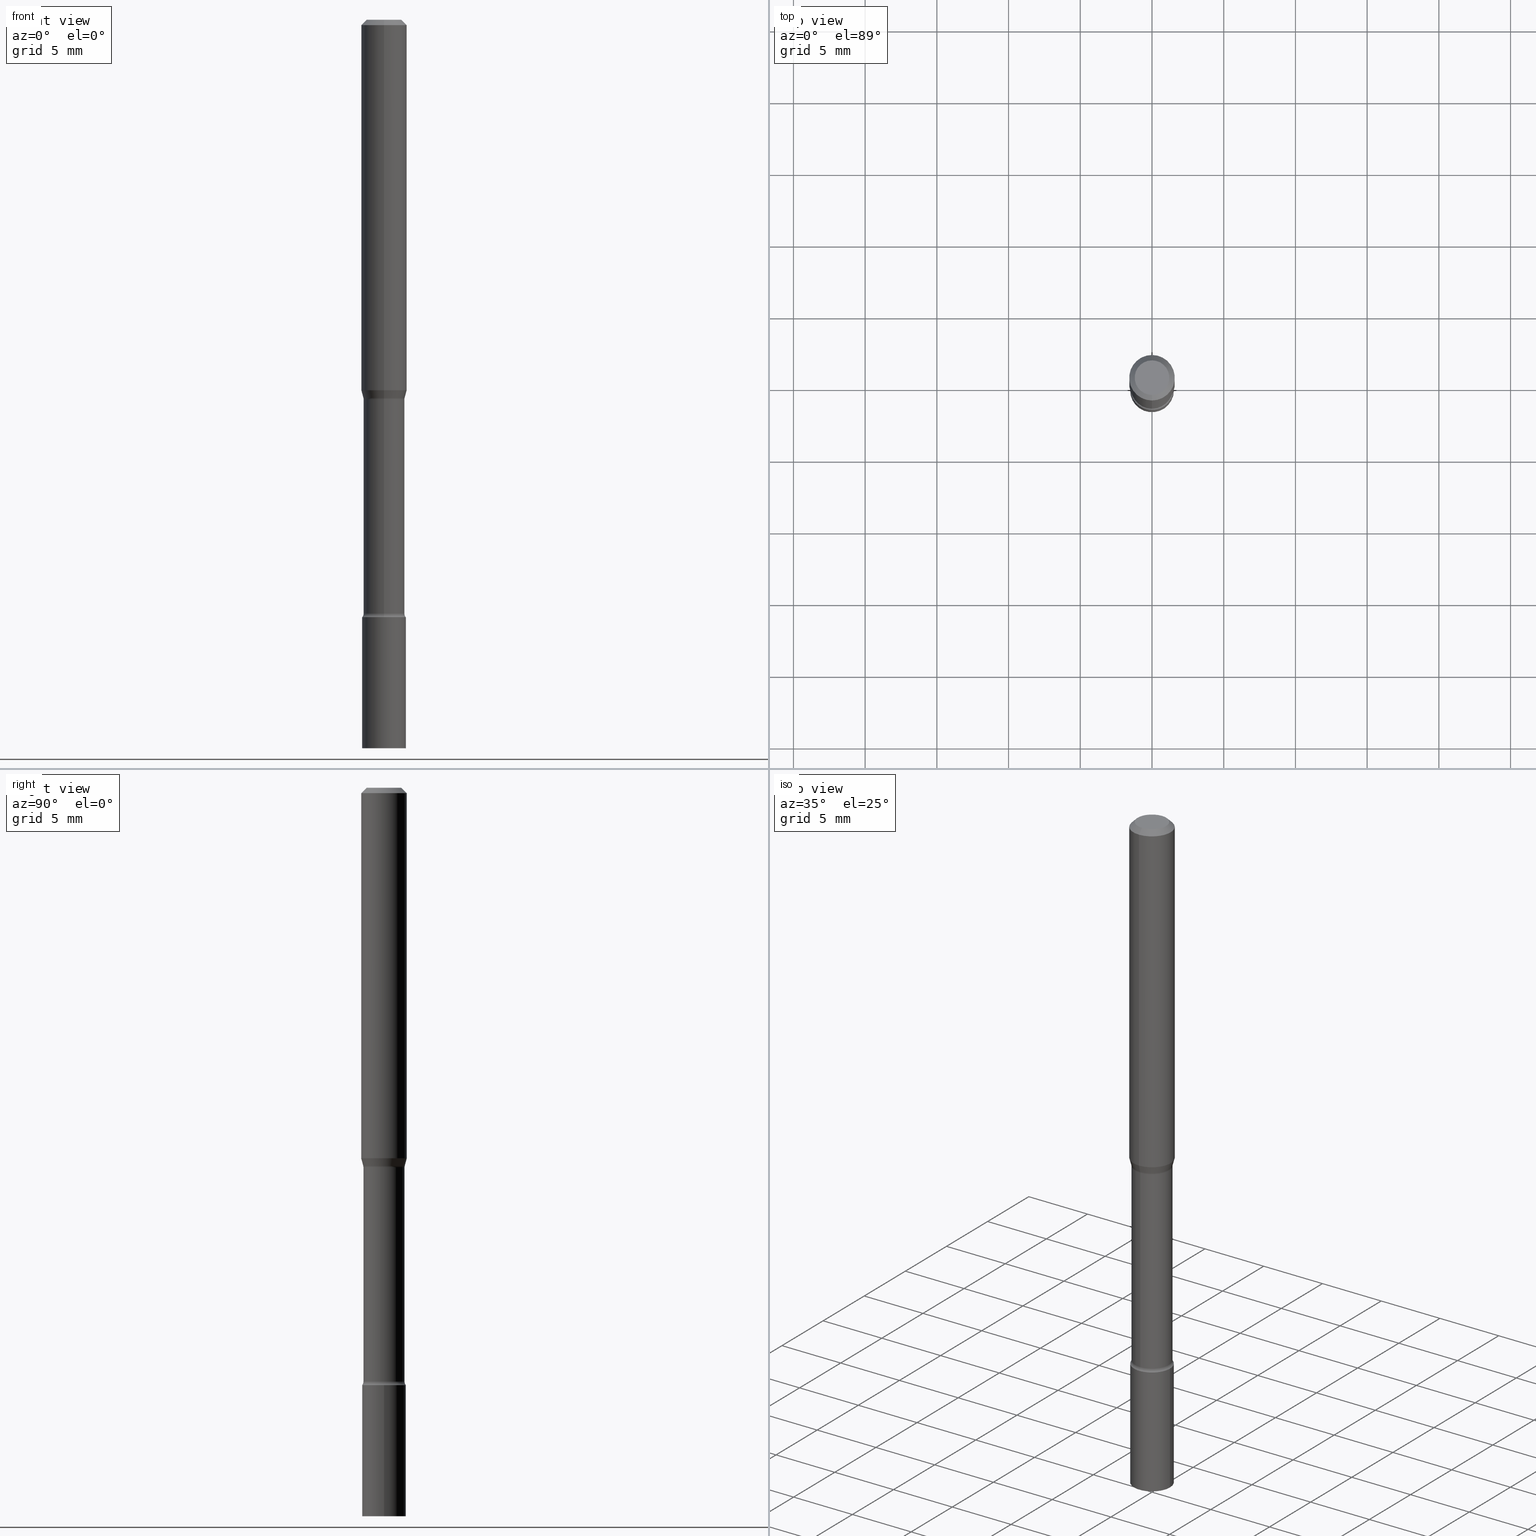
[diagram: canonical four-view strip — front | top / right | iso, engineering-drawing reading convention]
A machine part, canonical four-view strip (front | top / right | iso — engineering-drawing reading convention). The complete STEP part file that produces these views, byte-faithful:
ISO-10303-21;
HEADER;
FILE_DESCRIPTION (( 'STEP AP203' ),
    '1' );
FILE_NAME ('09891.STEP',
    '2024-03-09T02:53:28',
    ( '' ),
    ( '' ),
    'SwSTEP 2.0',
    'SolidWorks 2023',
    '' );
FILE_SCHEMA (( 'CONFIG_CONTROL_DESIGN' ));
ENDSEC;

DATA;
#1 = CARTESIAN_POINT ( 'NONE',  ( 2.539221718970733033E-29, -3.623622956402012275E-15, -1.038092501787273303 ) ) ;
#2 = CARTESIAN_POINT ( 'NONE',  ( 0.000000000000000000, 0.000000000000000000, 0.000000000000000000 ) ) ;
#3 = DIRECTION ( 'NONE',  ( -2.445468806185136597E-29, 3.491481338843145583E-15, 1.000000000000000000 ) ) ;
#4 = CIRCLE ( 'NONE', #213, 0.01500000000000000291 ) ;
#5 = SECURITY_CLASSIFICATION ( '', '', #262 ) ;
#6 = CARTESIAN_POINT ( 'NONE',  ( 4.043777764598211069E-16, 0.05691111260566031338, -1.038092501787273303 ) ) ;
#7 = ADVANCED_FACE ( 'NONE', ( #148 ), #186, .T. ) ;
#8 = CARTESIAN_POINT ( 'NONE',  ( 3.987668854432127938E-29, -5.690644615826130312E-15, -1.630251153914436868 ) ) ;
#9 = CYLINDRICAL_SURFACE ( 'NONE', #149, 0.05999999999999999778 ) ;
#10 = DIRECTION ( 'NONE',  ( -2.445468806185136877E-29, 3.491481338843145188E-15, 1.000000000000000000 ) ) ;
#11 = DIRECTION ( 'NONE',  ( -6.982962677686265922E-15, -1.000000000000000000, 3.490655168169751476E-15 ) ) ;
#12 = DIRECTION ( 'NONE',  ( -2.446045718082907683E-29, 3.490655168169751476E-15, 1.000000000000000000 ) ) ;
#13 = CARTESIAN_POINT ( 'NONE',  ( 4.890937612370273194E-29, -6.982962677686291165E-15, -2.000000000000000000 ) ) ;
#14 = ORIENTED_EDGE ( 'NONE', *, *, #154, .T. ) ;
#15 = CIRCLE ( 'NONE', #341, 0.05640000000000004732 ) ;
#16 = FACE_OUTER_BOUND ( 'NONE', #89, .T. ) ;
#17 = DIRECTION ( 'NONE',  ( 1.000000000000000000, -6.982962677686267499E-15, 4.876176775795936353E-29 ) ) ;
#18 = ORIENTED_EDGE ( 'NONE', *, *, #411, .T. ) ;
#19 = EDGE_CURVE ( 'NONE', #133, #24, #217, .T. ) ;
#20 = ORIENTED_EDGE ( 'NONE', *, *, #168, .F. ) ;
#21 = DIRECTION ( 'NONE',  ( -6.982962677686265922E-15, -1.000000000000000000, 2.400100673301881023E-15 ) ) ;
#22 = DIRECTION ( 'NONE',  ( -2.446045718082907683E-29, 3.490655168169751476E-15, 1.000000000000000000 ) ) ;
#23 = DIRECTION ( 'NONE',  ( -2.446045718082907403E-29, 3.490655168169751476E-15, 1.000000000000000000 ) ) ;
#24 = VERTEX_POINT ( 'NONE', #478 ) ;
#25 = AXIS2_PLACEMENT_3D ( 'NONE', #1, #219, #311 ) ;
#26 = CARTESIAN_POINT ( 'NONE',  ( 4.010568842143624288E-29, -5.726029395702758897E-15, -1.639999999999999902 ) ) ;
#27 = TOROIDAL_SURFACE ( 'NONE', #303, 0.07139999999999999125, 0.01500000000000000291 ) ;
#28 = CYLINDRICAL_SURFACE ( 'NONE', #301, 0.05640000000000001956 ) ;
#29 = PERSON_AND_ORGANIZATION_ROLE ( 'creator' ) ;
#30 =( CONVERSION_BASED_UNIT ( 'INCH', #290 ) LENGTH_UNIT ( ) NAMED_UNIT ( #250 ) );
#31 = VECTOR ( 'NONE', #113, 39.37007874015748143 ) ;
#32 = COORDINATED_UNIVERSAL_TIME_OFFSET ( 5, 0, .BEHIND. ) ;
#33 = AXIS2_PLACEMENT_3D ( 'NONE', #63, #23, #427 ) ;
#34 = PERSON_AND_ORGANIZATION ( #120, #431 ) ;
#35 = VERTEX_POINT ( 'NONE', #41 ) ;
#36 = ORIENTED_EDGE ( 'NONE', *, *, #74, .T. ) ;
#37 = CALENDAR_DATE ( 2024, 8, 3 ) ;
#38 = ORIENTED_EDGE ( 'NONE', *, *, #158, .T. ) ;
#39 = AXIS2_PLACEMENT_3D ( 'NONE', #26, #94, #360 ) ;
#40 = COORDINATED_UNIVERSAL_TIME_OFFSET ( 5, 0, .BEHIND. ) ;
#41 = CARTESIAN_POINT ( 'NONE',  ( 4.007461029687364320E-16, 0.05639999999999635583, -1.041974787463811003 ) ) ;
#42 = CC_DESIGN_PERSON_AND_ORGANIZATION_ASSIGNMENT ( #390, #73, ( #5 ) ) ;
#43 = FACE_OUTER_BOUND ( 'NONE', #146, .T. ) ;
#44 = CARTESIAN_POINT ( 'NONE',  ( 3.316907271900976096E-16, 0.04749999999999999362, -1.802826975054907927E-16 ) ) ;
#45 = DIRECTION ( 'NONE',  ( 1.000000000000000000, -7.105427357601001070E-15, 4.926305390869375483E-29 ) ) ;
#46 = CIRCLE ( 'NONE', #174, 0.01500000000000001853 ) ;
#47 = CARTESIAN_POINT ( 'NONE',  ( 0.05999999999999999778, -7.401940438347467010E-15, -2.000000000000000000 ) ) ;
#48 = LINE ( 'NONE', #346, #31 ) ;
#49 = CARTESIAN_POINT ( 'NONE',  ( 4.263256414561002783E-16, 0.05999999999999428707, -1.640000000000000346 ) ) ;
#50 = CIRCLE ( 'NONE', #155, 0.05999999999999999778 ) ;
#51 = PLANE ( 'NONE',  #33 ) ;
#52 = ADVANCED_FACE ( 'NONE', ( #163 ), #304, .F. ) ;
#53 = VERTEX_POINT ( 'NONE', #389 ) ;
#54 = DIRECTION ( 'NONE',  ( -2.446045718082907683E-29, 3.490655168169751476E-15, 1.000000000000000000 ) ) ;
#55 = PERSON_AND_ORGANIZATION ( #120, #431 ) ;
#56 = APPLICATION_CONTEXT ( 'configuration controlled 3d designs of mechanical parts and assemblies' ) ;
#57 = CARTESIAN_POINT ( 'NONE',  ( 4.007461029686965945E-16, 0.05640000000000001956, -1.968729514847740461E-16 ) ) ;
#58 = EDGE_CURVE ( 'NONE', #519, #64, #277, .T. ) ;
#59 = ORIENTED_EDGE ( 'NONE', *, *, #513, .T. ) ;
#60 = CARTESIAN_POINT ( 'NONE',  ( 2.548116839574137030E-29, -3.638035525974948720E-15, -1.041974787463810781 ) ) ;
#61 = CONICAL_SURFACE ( 'NONE', #25, 0.05691111260566392854, 0.2617993877991500740 ) ;
#62 = CARTESIAN_POINT ( 'NONE',  ( 0.000000000000000000, 0.000000000000000000, 0.000000000000000000 ) ) ;
#63 = CARTESIAN_POINT ( 'NONE',  ( 4.189777606612160768E-16, 0.05999999999999427319, -1.640000000000000346 ) ) ;
#64 = VERTEX_POINT ( 'NONE', #88 ) ;
#65 = DATE_AND_TIME ( #202, #414 ) ;
#66 = ADVANCED_FACE ( 'NONE', ( #43 ), #27, .F. ) ;
#67 = AXIS2_PLACEMENT_3D ( 'NONE', #325, #167, #81 ) ;
#68 = CC_DESIGN_DATE_AND_TIME_ASSIGNMENT ( #514, #339, ( #175 ) ) ;
#69 = LOCAL_TIME ( 21, 53, 28.00000000000000000, #178 ) ;
#70 = ORIENTED_EDGE ( 'NONE', *, *, #319, .F. ) ;
#71 = ORIENTED_EDGE ( 'NONE', *, *, #296, .T. ) ;
#72 = EDGE_LOOP ( 'NONE', ( #212, #209, #131, #184 ) ) ;
#73 = PERSON_AND_ORGANIZATION_ROLE ( 'classification_officer' ) ;
#74 = EDGE_CURVE ( 'NONE', #239, #215, #404, .T. ) ;
#75 = FACE_OUTER_BOUND ( 'NONE', #264, .T. ) ;
#76 = EDGE_CURVE ( 'NONE', #53, #87, #207, .T. ) ;
#77 = ORIENTED_EDGE ( 'NONE', *, *, #500, .F. ) ;
#78 = DIRECTION ( 'NONE',  ( -6.982962677686267499E-15, -1.000000000000000000, 0.000000000000000000 ) ) ;
#79 = CARTESIAN_POINT ( 'NONE',  ( 4.440892098500625669E-16, 0.06250000000000000000, -2.181659480106094672E-16 ) ) ;
#80 = DIRECTION ( 'NONE',  ( 2.446045718082907403E-29, -3.490655168169751476E-15, -1.000000000000000000 ) ) ;
#81 = DIRECTION ( 'NONE',  ( 7.105427357600997914E-15, 1.000000000000000000, 0.000000000000000000 ) ) ;
#82 = VECTOR ( 'NONE', #497, 39.37007874015748143 ) ;
#83 = CC_DESIGN_APPROVAL ( #376, ( #5 ) ) ;
#84 = DIRECTION ( 'NONE',  ( -2.446045718082907683E-29, 3.490655168169751476E-15, 1.000000000000000000 ) ) ;
#85 = DIRECTION ( 'NONE',  ( -6.982962677686265922E-15, -1.000000000000000000, 2.400100673301881023E-15 ) ) ;
#86 = CARTESIAN_POINT ( 'NONE',  ( -4.287811248607203282E-16, -0.06250000000000005551, -0.01499999999999981209 ) ) ;
#87 = VERTEX_POINT ( 'NONE', #159 ) ;
#88 = CARTESIAN_POINT ( 'NONE',  ( -4.364351673553912750E-16, -0.06250000000000005551, -0.01499999999999981209 ) ) ;
#89 = EDGE_LOOP ( 'NONE', ( #267, #91, #436, #102 ) ) ;
#90 = AXIS2_PLACEMENT_3D ( 'NONE', #13, #328, #504 ) ;
#91 = ORIENTED_EDGE ( 'NONE', *, *, #122, .F. ) ;
#92 = APPROVAL_DATE_TIME ( #380, #376 ) ;
#93 = ADVANCED_FACE ( 'NONE', ( #486 ), #365, .T. ) ;
#94 = DIRECTION ( 'NONE',  ( -2.445468806185136597E-29, 3.491481338843145583E-15, 1.000000000000000000 ) ) ;
#95 = LINE ( 'NONE', #57, #307 ) ;
#96 = ORIENTED_EDGE ( 'NONE', *, *, #195, .T. ) ;
#97 = CALENDAR_DATE ( 2024, 8, 3 ) ;
#98 = ADVANCED_FACE ( 'NONE', ( #401 ), #353, .T. ) ;
#99 = ORIENTED_EDGE ( 'NONE', *, *, #151, .F. ) ;
#100 = CIRCLE ( 'NONE', #489, 0.04749999999999999362 ) ;
#101 = PERSON_AND_ORGANIZATION_ROLE ( 'design_owner' ) ;
#102 = ORIENTED_EDGE ( 'NONE', *, *, #183, .T. ) ;
#103 = DIRECTION ( 'NONE',  ( -2.446045718082907683E-29, 3.490655168169751476E-15, 1.000000000000000000 ) ) ;
#104 = ADVANCED_FACE ( 'NONE', ( #331 ), #350, .F. ) ;
#105 = VERTEX_POINT ( 'NONE', #47 ) ;
#106 = FACE_OUTER_BOUND ( 'NONE', #143, .T. ) ;
#107 = ORIENTED_EDGE ( 'NONE', *, *, #183, .F. ) ;
#108 = AXIS2_PLACEMENT_3D ( 'NONE', #44, #80, #496 ) ;
#109 = CIRCLE ( 'NONE', #324, 0.06250000000000000000 ) ;
#110 = DIRECTION ( 'NONE',  ( -6.982962677686265922E-15, -1.000000000000000000, 3.490655168169751476E-15 ) ) ;
#111 = ADVANCED_FACE ( 'NONE', ( #192 ), #9, .T. ) ;
#112 = APPROVAL_STATUS ( 'not_yet_approved' ) ;
#113 = DIRECTION ( 'NONE',  ( -2.446045718082907683E-29, 3.490655168169751476E-15, 1.000000000000000000 ) ) ;
#114 = DIRECTION ( 'NONE',  ( -2.446045718082907683E-29, 3.490655168169751476E-15, 1.000000000000000000 ) ) ;
#115 = ORIENTED_EDGE ( 'NONE', *, *, #308, .F. ) ;
#116 = DIRECTION ( 'NONE',  ( -6.982962677686265922E-15, -1.000000000000000000, 3.490655168169751476E-15 ) ) ;
#117 = CIRCLE ( 'NONE', #413, 0.01500000000000001853 ) ;
#118 = DIRECTION ( 'NONE',  ( -2.446045718082907683E-29, 3.490655168169751476E-15, 1.000000000000000000 ) ) ;
#119 = ADVANCED_FACE ( 'NONE', ( #318 ), #261, .F. ) ;
#120 = PERSON ( 'UNSPECIFIED', 'UNSPECIFIED', 'UNSPECIFIED', ('UNSPECIFIED'), ('UNSPECIFIED'), ('UNSPECIFIED') ) ;
#121 = AXIS2_PLACEMENT_3D ( 'NONE', #2, #317, #110 ) ;
#122 = EDGE_CURVE ( 'NONE', #171, #410, #387, .T. ) ;
#123 = CARTESIAN_POINT ( 'NONE',  ( 0.000000000000000000, 0.000000000000000000, 0.000000000000000000 ) ) ;
#124 = DIRECTION ( 'NONE',  ( -2.446045718082907683E-29, 3.490655168169751476E-15, 1.000000000000000000 ) ) ;
#125 = AXIS2_PLACEMENT_3D ( 'NONE', #60, #494, #372 ) ;
#126 = DIRECTION ( 'NONE',  ( -6.982962677686265922E-15, -1.000000000000000000, 2.400100673301881023E-15 ) ) ;
#127 = ORIENTED_EDGE ( 'NONE', *, *, #76, .T. ) ;
#128 = ORIENTED_EDGE ( 'NONE', *, *, #314, .F. ) ;
#129 = CARTESIAN_POINT ( 'NONE',  ( 2.548116839574137030E-29, -3.638035525974948720E-15, -1.041974787463810781 ) ) ;
#130 = ADVANCED_FACE ( 'NONE', ( #252 ), #51, .F. ) ;
#131 = ORIENTED_EDGE ( 'NONE', *, *, #19, .F. ) ;
#132 = DATE_AND_TIME ( #501, #185 ) ;
#133 = VERTEX_POINT ( 'NONE', #211 ) ;
#134 = AXIS2_PLACEMENT_3D ( 'NONE', #487, #124, #359 ) ;
#135 = FACE_OUTER_BOUND ( 'NONE', #244, .T. ) ;
#136 = DIRECTION ( 'NONE',  ( 7.105427357601006592E-15, 1.000000000000000000, 0.000000000000000000 ) ) ;
#137 = EDGE_LOOP ( 'NONE', ( #38, #423, #107, #291 ) ) ;
#138 = MECHANICAL_CONTEXT ( 'NONE', #282, 'mechanical' ) ;
#139 = PRODUCT_RELATED_PRODUCT_CATEGORY ( 'detail', '', ( #199 ) ) ;
#140 = COORDINATED_UNIVERSAL_TIME_OFFSET ( 5, 0, .BEHIND. ) ;
#141 = AXIS2_PLACEMENT_3D ( 'NONE', #123, #84, #283 ) ;
#142 = PERSON_AND_ORGANIZATION_ROLE ( 'creator' ) ;
#143 = EDGE_LOOP ( 'NONE', ( #416, #265, #36, #394 ) ) ;
#144 = DIRECTION ( 'NONE',  ( 1.839019923739598738E-15, 0.2588190451025247363, 0.9659258262890673130 ) ) ;
#145 = ORIENTED_EDGE ( 'NONE', *, *, #76, .F. ) ;
#146 = EDGE_LOOP ( 'NONE', ( #200, #279, #281, #459 ) ) ;
#147 = ADVANCED_FACE ( 'NONE', ( #106 ), #498, .T. ) ;
#148 = FACE_OUTER_BOUND ( 'NONE', #370, .T. ) ;
#149 = AXIS2_PLACEMENT_3D ( 'NONE', #241, #3, #156 ) ;
#150 = EDGE_LOOP ( 'NONE', ( #218, #289, #272, #392 ) ) ;
#151 = EDGE_CURVE ( 'NONE', #446, #35, #95, .T. ) ;
#152 = DIRECTION ( 'NONE',  ( -2.438088387897960049E-29, 3.491481338843145188E-15, 1.000000000000000000 ) ) ;
#153 = CARTESIAN_POINT ( 'NONE',  ( 3.840629472727447874E-16, 0.04749999999999999362, -1.947592745229184365E-16 ) ) ;
#154 = EDGE_CURVE ( 'NONE', #239, #519, #248, .T. ) ;
#155 = AXIS2_PLACEMENT_3D ( 'NONE', #417, #287, #242 ) ;
#156 = DIRECTION ( 'NONE',  ( 1.000000000000000000, -6.982962677686267499E-15, 4.876176775795936353E-29 ) ) ;
#157 = DIRECTION ( 'NONE',  ( -2.446045718082907683E-29, 3.490655168169751476E-15, 1.000000000000000000 ) ) ;
#158 = EDGE_CURVE ( 'NONE', #181, #446, #351, .T. ) ;
#159 = CARTESIAN_POINT ( 'NONE',  ( -4.364351673553668203E-16, -0.06250000000000355271, -1.017234490073829489 ) ) ;
#160 = CARTESIAN_POINT ( 'NONE',  ( 4.890937612370273194E-29, -6.982962677686291165E-15, -2.000000000000000000 ) ) ;
#161 = DIRECTION ( 'NONE',  ( -2.446045718082907683E-29, 3.490655168169751476E-15, 1.000000000000000000 ) ) ;
#162 = CARTESIAN_POINT ( 'NONE',  ( 4.440892098500875639E-16, 0.06249999999999995143, -0.01500000000000024751 ) ) ;
#163 = FACE_OUTER_BOUND ( 'NONE', #388, .T. ) ;
#164 = CARTESIAN_POINT ( 'NONE',  ( 3.986728343145079357E-29, -5.691991481519761195E-15, -1.630251153914436868 ) ) ;
#165 = DIRECTION ( 'NONE',  ( -6.982962677686265922E-15, -1.000000000000000000, 3.483106191921935554E-15 ) ) ;
#166 = AXIS2_PLACEMENT_3D ( 'NONE', #160, #437, #322 ) ;
#167 = DIRECTION ( 'NONE',  ( 1.000000000000000000, -7.105427357601001070E-15, 4.926305390869375483E-29 ) ) ;
#168 = EDGE_CURVE ( 'NONE', #446, #181, #15, .T. ) ;
#169 = DIRECTION ( 'NONE',  ( -1.000000000000000000, 6.982962677686265922E-15, -4.876176775795935793E-29 ) ) ;
#170 = ORIENTED_EDGE ( 'NONE', *, *, #491, .T. ) ;
#171 = VERTEX_POINT ( 'NONE', #320 ) ;
#172 = DIRECTION ( 'NONE',  ( 2.446045718082907683E-29, -3.490655168169751476E-15, -1.000000000000000000 ) ) ;
#173 = EDGE_LOOP ( 'NONE', ( #99, #257, #516, #249 ) ) ;
#174 = AXIS2_PLACEMENT_3D ( 'NONE', #269, #45, #136 ) ;
#175 = PRODUCT_DEFINITION ( 'UNKNOWN', '', #384, #180 ) ;
#176 = CARTESIAN_POINT ( 'NONE',  ( 2.539221718970733033E-29, -3.623622956402012275E-15, -1.038092501787273303 ) ) ;
#177 = PERSON_AND_ORGANIZATION ( #120, #431 ) ;
#178 = COORDINATED_UNIVERSAL_TIME_OFFSET ( 5, 0, .BEHIND. ) ;
#179 = LOCAL_TIME ( 21, 53, 28.00000000000000000, #40 ) ;
#180 = DESIGN_CONTEXT ( 'detailed design', #56, 'design' ) ;
#181 = VERTEX_POINT ( 'NONE', #450 ) ;
#182 = DATE_AND_TIME ( #37, #422 ) ;
#183 = EDGE_CURVE ( 'NONE', #285, #35, #268, .T. ) ;
#184 = ORIENTED_EDGE ( 'NONE', *, *, #210, .F. ) ;
#185 = LOCAL_TIME ( 21, 53, 28.00000000000000000, #140 ) ;
#186 = CYLINDRICAL_SURFACE ( 'NONE', #121, 0.06250000000000000000 ) ;
#187 = EDGE_CURVE ( 'NONE', #171, #285, #4, .T. ) ;
#188 = CARTESIAN_POINT ( 'NONE',  ( 0.000000000000000000, 0.000000000000000000, 0.000000000000000000 ) ) ;
#189 = AXIS2_PLACEMENT_3D ( 'NONE', #441, #152, #481 ) ;
#190 = DIRECTION ( 'NONE',  ( -1.000000000000000000, 6.982962677686265922E-15, -4.883557194083112340E-29 ) ) ;
#191 = CARTESIAN_POINT ( 'NONE',  ( 3.987668854432127938E-29, -5.690644615826130312E-15, -1.630251153914436868 ) ) ;
#192 = FACE_OUTER_BOUND ( 'NONE', #201, .T. ) ;
#193 = CARTESIAN_POINT ( 'NONE',  ( 7.082073845195251811E-46, -1.010654767665823167E-31, -2.895315403485523849E-17 ) ) ;
#194 = CARTESIAN_POINT ( 'NONE',  ( -3.938390950214798652E-16, -0.05640000000000363473, -1.041974787463810781 ) ) ;
#195 = EDGE_CURVE ( 'NONE', #53, #215, #330, .T. ) ;
#196 = DIRECTION ( 'NONE',  ( -1.807323732225328562E-15, -0.2588190451025179639, 0.9659258262890690894 ) ) ;
#197 = CARTESIAN_POINT ( 'NONE',  ( -0.05999999999999999778, -5.928170395238464936E-15, -2.000000000000000000 ) ) ;
#198 = VECTOR ( 'NONE', #10, 39.37007874015748143 ) ;
#199 = PRODUCT ( '09891', '09891', '', ( #138 ) ) ;
#200 = ORIENTED_EDGE ( 'NONE', *, *, #354, .F. ) ;
#201 = EDGE_LOOP ( 'NONE', ( #345, #362, #475, #499 ) ) ;
#202 = CALENDAR_DATE ( 2024, 8, 3 ) ;
#203 = DIRECTION ( 'NONE',  ( -2.446045718082907683E-29, 3.490655168169751476E-15, 1.000000000000000000 ) ) ;
#204 = DIRECTION ( 'NONE',  ( -2.446045718082907683E-29, 3.490655168169751476E-15, 1.000000000000000000 ) ) ;
#205 = AXIS2_PLACEMENT_3D ( 'NONE', #191, #22, #356 ) ;
#206 = APPROVAL_PERSON_ORGANIZATION ( #55, #347, #373 ) ;
#207 = CIRCLE ( 'NONE', #520, 0.06250000000000000000 ) ;
#208 = PERSON_AND_ORGANIZATION ( #120, #431 ) ;
#209 = ORIENTED_EDGE ( 'NONE', *, *, #503, .T. ) ;
#210 = EDGE_CURVE ( 'NONE', #105, #133, #226, .T. ) ;
#211 = CARTESIAN_POINT ( 'NONE',  ( 0.05999999999999999778, -6.145007156363934742E-15, -1.639999999999999902 ) ) ;
#212 = ORIENTED_EDGE ( 'NONE', *, *, #453, .T. ) ;
#213 = AXIS2_PLACEMENT_3D ( 'NONE', #326, #235, #409 ) ;
#214 = APPROVAL_STATUS ( 'not_yet_approved' ) ;
#215 = VERTEX_POINT ( 'NONE', #162 ) ;
#216 = CYLINDRICAL_SURFACE ( 'NONE', #141, 0.05640000000000001956 ) ;
#217 = CIRCLE ( 'NONE', #286, 0.05999999999999999778 ) ;
#218 = ORIENTED_EDGE ( 'NONE', *, *, #471, .F. ) ;
#219 = DIRECTION ( 'NONE',  ( -2.446045718082907683E-29, 3.490655168169751476E-15, 1.000000000000000000 ) ) ;
#220 = EDGE_CURVE ( 'NONE', #305, #105, #374, .T. ) ;
#221 = ORIENTED_EDGE ( 'NONE', *, *, #382, .F. ) ;
#222 = CARTESIAN_POINT ( 'NONE',  ( 4.010568842143624288E-29, -5.726029395702758897E-15, -1.639999999999999902 ) ) ;
#223 = ORIENTED_EDGE ( 'NONE', *, *, #513, .F. ) ;
#224 = CIRCLE ( 'NONE', #39, 0.05999999999999999778 ) ;
#225 = CARTESIAN_POINT ( 'NONE',  ( 2.488202068731341388E-29, -3.550814830016735808E-15, -1.017234490073829711 ) ) ;
#226 = LINE ( 'NONE', #358, #198 ) ;
#227 = DIRECTION ( 'NONE',  ( -6.982962677686265922E-15, -1.000000000000000000, 4.370956789862821150E-15 ) ) ;
#228 = DIRECTION ( 'NONE',  ( -6.982962677686265922E-15, -1.000000000000000000, 4.370956789862821150E-15 ) ) ;
#229 = CIRCLE ( 'NONE', #472, 0.05639999999999999181 ) ;
#230 = DIRECTION ( 'NONE',  ( -6.982962677686266711E-15, -1.000000000000000000, 3.490655168169751870E-15 ) ) ;
#231 = CARTESIAN_POINT ( 'NONE',  ( 4.189777606612248528E-16, 0.05999999999999301725, -2.000000000000000444 ) ) ;
#232 = CC_DESIGN_APPROVAL ( #245, ( #175 ) ) ;
#233 = VECTOR ( 'NONE', #271, 39.37007874015748143 ) ;
#234 = LINE ( 'NONE', #408, #518 ) ;
#235 = DIRECTION ( 'NONE',  ( -1.000000000000000000, 6.982962677686265922E-15, -4.883557194083112340E-29 ) ) ;
#236 = DIRECTION ( 'NONE',  ( 4.937700262164548042E-15, 0.7071067811865451302, -0.7071067811865499042 ) ) ;
#237 = LINE ( 'NONE', #461, #82 ) ;
#238 = FACE_OUTER_BOUND ( 'NONE', #137, .T. ) ;
#239 = VERTEX_POINT ( 'NONE', #153 ) ;
#240 = CARTESIAN_POINT ( 'NONE',  ( 7.082073845195251811E-46, -1.010654767665823167E-31, -2.895315403485523849E-17 ) ) ;
#241 = CARTESIAN_POINT ( 'NONE',  ( 0.000000000000000000, 0.000000000000000000, 0.000000000000000000 ) ) ;
#242 = DIRECTION ( 'NONE',  ( -6.982962677686265922E-15, -1.000000000000000000, 4.553079989440439092E-15 ) ) ;
#243 = AXIS2_PLACEMENT_3D ( 'NONE', #275, #407, #309 ) ;
#244 = EDGE_LOOP ( 'NONE', ( #306, #509, #266, #223 ) ) ;
#245 = APPROVAL ( #424, 'UNSPECIFIED' ) ;
#246 = APPROVAL_DATE_TIME ( #132, #347 ) ;
#247 = SHAPE_DEFINITION_REPRESENTATION ( #517, #447 ) ;
#248 = CIRCLE ( 'NONE', #348, 0.04749999999999999362 ) ;
#249 = ORIENTED_EDGE ( 'NONE', *, *, #368, .F. ) ;
#250 = DIMENSIONAL_EXPONENTS ( 1.000000000000000000, 0.000000000000000000, 0.000000000000000000, 0.000000000000000000, 0.000000000000000000, 0.000000000000000000, 0.000000000000000000 ) ;
#251 = AXIS2_PLACEMENT_3D ( 'NONE', #225, #118, #228 ) ;
#252 = FACE_OUTER_BOUND ( 'NONE', #302, .T. ) ;
#253 = CC_DESIGN_DATE_AND_TIME_ASSIGNMENT ( #182, #477, ( #5 ) ) ;
#254 =( LENGTH_UNIT ( ) NAMED_UNIT ( * ) SI_UNIT ( $, .METRE. ) );
#255 = CARTESIAN_POINT ( 'NONE',  ( 3.669068577124369092E-31, -5.235982752254638011E-17, -0.01500000000000003067 ) ) ;
#256 = DIRECTION ( 'NONE',  ( -6.982962677686265922E-15, -1.000000000000000000, 4.553079989440439092E-15 ) ) ;
#257 = ORIENTED_EDGE ( 'NONE', *, *, #168, .T. ) ;
#258 = CONICAL_SURFACE ( 'NONE', #243, 0.06250000000000000000, 0.7853981633974483900 ) ;
#259 = CARTESIAN_POINT ( 'NONE',  ( 0.000000000000000000, 0.000000000000000000, 0.000000000000000000 ) ) ;
#260 = ADVANCED_FACE ( 'NONE', ( #488 ), #258, .T. ) ;
#261 = TOROIDAL_SURFACE ( 'NONE', #263, 0.07140000000000007452, 0.01500000000000002373 ) ;
#262 = SECURITY_CLASSIFICATION_LEVEL ( 'unclassified' ) ;
#263 = AXIS2_PLACEMENT_3D ( 'NONE', #164, #381, #292 ) ;
#264 = EDGE_LOOP ( 'NONE', ( #462, #127, #465, #128 ) ) ;
#265 = ORIENTED_EDGE ( 'NONE', *, *, #154, .F. ) ;
#266 = ORIENTED_EDGE ( 'NONE', *, *, #491, .F. ) ;
#267 = ORIENTED_EDGE ( 'NONE', *, *, #479, .F. ) ;
#268 = CIRCLE ( 'NONE', #134, 0.05639999999999999181 ) ;
#269 = CARTESIAN_POINT ( 'NONE',  ( 5.073275133327518011E-16, 0.07139999999999438463, -1.630251153914437090 ) ) ;
#270 = EDGE_CURVE ( 'NONE', #87, #64, #48, .T. ) ;
#271 = DIRECTION ( 'NONE',  ( -4.851104656540964275E-15, -0.7071067811865500152, -0.7071067811865450192 ) ) ;
#272 = ORIENTED_EDGE ( 'NONE', *, *, #319, .T. ) ;
#273 = ADVANCED_FACE ( 'NONE', ( #75 ), #399, .T. ) ;
#274 = FACE_OUTER_BOUND ( 'NONE', #454, .T. ) ;
#275 = CARTESIAN_POINT ( 'NONE',  ( 3.669068577124369092E-31, -5.235982752254638011E-17, -0.01500000000000003067 ) ) ;
#276 = DIRECTION ( 'NONE',  ( -2.446045718082907683E-29, 3.490655168169751476E-15, 1.000000000000000000 ) ) ;
#277 = LINE ( 'NONE', #86, #233 ) ;
#278 = CARTESIAN_POINT ( 'NONE',  ( 2.548717967226202365E-29, -3.637174676963129904E-15, -1.041974787463810781 ) ) ;
#279 = ORIENTED_EDGE ( 'NONE', *, *, #479, .T. ) ;
#280 = DIRECTION ( 'NONE',  ( -2.446045718082907683E-29, 3.490655168169751476E-15, 1.000000000000000000 ) ) ;
#281 = ORIENTED_EDGE ( 'NONE', *, *, #368, .T. ) ;
#282 = APPLICATION_CONTEXT ( 'configuration controlled 3d designs of mechanical parts and assemblies' ) ;
#283 = DIRECTION ( 'NONE',  ( -6.982962677686265133E-15, -1.000000000000000000, 3.490655168169751476E-15 ) ) ;
#284 = CIRCLE ( 'NONE', #67, 0.01500000000000000291 ) ;
#285 = VERTEX_POINT ( 'NONE', #194 ) ;
#286 = AXIS2_PLACEMENT_3D ( 'NONE', #222, #485, #425 ) ;
#287 = DIRECTION ( 'NONE',  ( -2.446045718082907683E-29, 3.490655168169751476E-15, 1.000000000000000000 ) ) ;
#288 = DIRECTION ( 'NONE',  ( 6.982962677686265922E-15, 1.000000000000000000, -3.483106191921935554E-15 ) ) ;
#289 = ORIENTED_EDGE ( 'NONE', *, *, #58, .T. ) ;
#290 = LENGTH_MEASURE_WITH_UNIT ( LENGTH_MEASURE( 0.02539999999999999897 ), #254 );
#291 = ORIENTED_EDGE ( 'NONE', *, *, #400, .F. ) ;
#292 = DIRECTION ( 'NONE',  ( -6.982962677686265922E-15, -1.000000000000000000, 3.490655168169751476E-15 ) ) ;
#293 = PERSON_AND_ORGANIZATION ( #120, #431 ) ;
#294 = AXIS2_PLACEMENT_3D ( 'NONE', #327, #493, #126 ) ;
#295 = APPROVAL_ROLE ( '' ) ;
#296 = EDGE_CURVE ( 'NONE', #24, #133, #224, .T. ) ;
#297 = ORIENTED_EDGE ( 'NONE', *, *, #19, .T. ) ;
#298 = CC_DESIGN_PERSON_AND_ORGANIZATION_ASSIGNMENT ( #34, #468, ( #384 ) ) ;
#299 = ORIENTED_EDGE ( 'NONE', *, *, #308, .T. ) ;
#300 = CARTESIAN_POINT ( 'NONE',  ( 4.011514977655969307E-29, -5.724674475798391900E-15, -1.639999999999999902 ) ) ;
#301 = AXIS2_PLACEMENT_3D ( 'NONE', #62, #379, #464 ) ;
#302 = EDGE_LOOP ( 'NONE', ( #115, #221 ) ) ;
#303 = AXIS2_PLACEMENT_3D ( 'NONE', #129, #444, #11 ) ;
#304 = TOROIDAL_SURFACE ( 'NONE', #377, 0.07140000000000007452, 0.01500000000000002373 ) ;
#305 = VERTEX_POINT ( 'NONE', #197 ) ;
#306 = ORIENTED_EDGE ( 'NONE', *, *, #122, .T. ) ;
#307 = VECTOR ( 'NONE', #204, 39.37007874015748143 ) ;
#308 = EDGE_CURVE ( 'NONE', #419, #375, #50, .T. ) ;
#309 = DIRECTION ( 'NONE',  ( 6.982962677686265922E-15, 1.000000000000000000, -3.483106191921935554E-15 ) ) ;
#310 = AXIS2_PLACEMENT_3D ( 'NONE', #255, #172, #288 ) ;
#311 = DIRECTION ( 'NONE',  ( -6.982962677686265922E-15, -1.000000000000000000, 2.400100673301881023E-15 ) ) ;
#312 = DIRECTION ( 'NONE',  ( -2.446045718082907683E-29, 3.490655168169751476E-15, 1.000000000000000000 ) ) ;
#313 = FACE_OUTER_BOUND ( 'NONE', #396, .T. ) ;
#314 = EDGE_CURVE ( 'NONE', #215, #64, #344, .T. ) ;
#315 = LINE ( 'NONE', #349, #430 ) ;
#316 = AXIS2_PLACEMENT_3D ( 'NONE', #418, #203, #415 ) ;
#317 = DIRECTION ( 'NONE',  ( -2.446045718082907683E-29, 3.490655168169751476E-15, 1.000000000000000000 ) ) ;
#318 = FACE_OUTER_BOUND ( 'NONE', #337, .T. ) ;
#319 = EDGE_CURVE ( 'NONE', #64, #215, #109, .T. ) ;
#320 = CARTESIAN_POINT ( 'NONE',  ( -3.974081752709262079E-16, -0.05691111260566755065, -1.038092501787273081 ) ) ;
#321 = CARTESIAN_POINT ( 'NONE',  ( 2.539221718970733033E-29, -3.623622956402012275E-15, -1.038092501787273303 ) ) ;
#322 = DIRECTION ( 'NONE',  ( 1.000000000000000000, -6.982962677686268288E-15, 0.000000000000000000 ) ) ;
#323 = ORIENTED_EDGE ( 'NONE', *, *, #220, .F. ) ;
#324 = AXIS2_PLACEMENT_3D ( 'NONE', #336, #12, #165 ) ;
#325 = CARTESIAN_POINT ( 'NONE',  ( 5.073275133327369113E-16, 0.07139999999999635527, -1.041974787463811225 ) ) ;
#326 = CARTESIAN_POINT ( 'NONE',  ( -4.985835351867739251E-16, -0.07140000000000362723, -1.041974787463810559 ) ) ;
#327 = CARTESIAN_POINT ( 'NONE',  ( 2.539221718970733033E-29, -3.623622956402012275E-15, -1.038092501787273303 ) ) ;
#328 = DIRECTION ( 'NONE',  ( -2.445468806185136597E-29, 3.491481338843145583E-15, 1.000000000000000000 ) ) ;
#329 = DIRECTION ( 'NONE',  ( -6.982962677686266711E-15, -1.000000000000000000, 3.490655168169751870E-15 ) ) ;
#330 = LINE ( 'NONE', #79, #395 ) ;
#331 = FACE_OUTER_BOUND ( 'NONE', #502, .T. ) ;
#332 = ORIENTED_EDGE ( 'NONE', *, *, #382, .T. ) ;
#333 = CARTESIAN_POINT ( 'NONE',  ( -4.985835351867600214E-16, -0.07140000000000576441, -1.630251153914436646 ) ) ;
#334 = ORIENTED_EDGE ( 'NONE', *, *, #354, .T. ) ;
#335 = AXIS2_PLACEMENT_3D ( 'NONE', #188, #157, #458 ) ;
#336 = CARTESIAN_POINT ( 'NONE',  ( 3.669068577124369092E-31, -5.235982752254638011E-17, -0.01500000000000003067 ) ) ;
#337 = EDGE_LOOP ( 'NONE', ( #77, #385, #18, #299 ) ) ;
#338 = CC_DESIGN_PERSON_AND_ORGANIZATION_ASSIGNMENT ( #434, #142, ( #384 ) ) ;
#339 = DATE_TIME_ROLE ( 'creation_date' ) ;
#340 = AXIS2_PLACEMENT_3D ( 'NONE', #231, #455, #169 ) ;
#341 = AXIS2_PLACEMENT_3D ( 'NONE', #8, #161, #406 ) ;
#342 = CC_DESIGN_PERSON_AND_ORGANIZATION_ASSIGNMENT ( #293, #101, ( #199 ) ) ;
#343 = PERSON_AND_ORGANIZATION ( #120, #431 ) ;
#344 = CIRCLE ( 'NONE', #316, 0.06250000000000000000 ) ;
#345 = ORIENTED_EDGE ( 'NONE', *, *, #503, .F. ) ;
#346 = CARTESIAN_POINT ( 'NONE',  ( -4.364351673553916201E-16, -0.06250000000000000000, 2.181659480106094672E-16 ) ) ;
#347 = APPROVAL ( #214, 'UNSPECIFIED' ) ;
#348 = AXIS2_PLACEMENT_3D ( 'NONE', #240, #507, #230 ) ;
#349 = CARTESIAN_POINT ( 'NONE',  ( -3.938390950215055032E-16, -0.05640000000000001956, 1.968729514847740461E-16 ) ) ;
#350 = PLANE ( 'NONE',  #108 ) ;
#351 = CIRCLE ( 'NONE', #205, 0.05640000000000004732 ) ;
#352 = CARTESIAN_POINT ( 'NONE',  ( 4.242334931549543847E-16, 0.05691111260566031338, -1.038092501787273303 ) ) ;
#353 = PLANE ( 'NONE',  #340 ) ;
#354 = EDGE_CURVE ( 'NONE', #410, #171, #438, .T. ) ;
#355 = CARTESIAN_POINT ( 'NONE',  ( -4.189777606611360074E-16, -0.06000000000000574318, -1.639999999999999680 ) ) ;
#356 = DIRECTION ( 'NONE',  ( -6.982962677686265133E-15, -1.000000000000000000, 4.843702116425994485E-15 ) ) ;
#357 = CARTESIAN_POINT ( 'NONE',  ( 2.488202068731341388E-29, -3.550814830016735808E-15, -1.017234490073829711 ) ) ;
#358 = CARTESIAN_POINT ( 'NONE',  ( 0.05999999999999999778, -4.189777606611760421E-16, 2.925706065477561756E-30 ) ) ;
#359 = DIRECTION ( 'NONE',  ( -6.982962677686265922E-15, -1.000000000000000000, 2.421851058212999609E-15 ) ) ;
#360 = DIRECTION ( 'NONE',  ( 1.000000000000000000, -6.982962677686268288E-15, 0.000000000000000000 ) ) ;
#361 = CARTESIAN_POINT ( 'NONE',  ( 4.135358722124184538E-16, 0.05639999999999435049, -1.630251153914437090 ) ) ;
#362 = ORIENTED_EDGE ( 'NONE', *, *, #220, .T. ) ;
#363 = CARTESIAN_POINT ( 'NONE',  ( -3.773273898774340269E-16, -0.04749999999999999362, 1.368529664532079596E-16 ) ) ;
#364 = AXIS2_PLACEMENT_3D ( 'NONE', #300, #114, #256 ) ;
#365 = CYLINDRICAL_SURFACE ( 'NONE', #412, 0.05999999999999999778 ) ;
#366 =( GEOMETRIC_REPRESENTATION_CONTEXT ( 3 ) GLOBAL_UNCERTAINTY_ASSIGNED_CONTEXT ( ( #386 ) ) GLOBAL_UNIT_ASSIGNED_CONTEXT ( ( #30, #470, #420 ) ) REPRESENTATION_CONTEXT ( 'NONE', 'WORKASPACE' ) );
#367 = DIRECTION ( 'NONE',  ( -6.982962677686265922E-15, -1.000000000000000000, 2.421851058212999609E-15 ) ) ;
#368 = EDGE_CURVE ( 'NONE', #35, #285, #229, .T. ) ;
#369 = EDGE_LOOP ( 'NONE', ( #426, #323 ) ) ;
#370 = EDGE_LOOP ( 'NONE', ( #170, #96, #70, #391 ) ) ;
#371 = ADVANCED_FACE ( 'NONE', ( #238 ), #28, .T. ) ;
#372 = DIRECTION ( 'NONE',  ( -6.982962677686265922E-15, -1.000000000000000000, 3.490655168169751476E-15 ) ) ;
#373 = APPROVAL_ROLE ( '' ) ;
#374 = CIRCLE ( 'NONE', #166, 0.05999999999999999778 ) ;
#375 = VERTEX_POINT ( 'NONE', #49 ) ;
#376 = APPROVAL ( #112, 'UNSPECIFIED' ) ;
#377 = AXIS2_PLACEMENT_3D ( 'NONE', #397, #312, #116 ) ;
#378 = DIRECTION ( 'NONE',  ( 1.000000000000000000, 0.000000000000000000, 0.000000000000000000 ) ) ;
#379 = DIRECTION ( 'NONE',  ( -2.446045718082907683E-29, 3.490655168169751476E-15, 1.000000000000000000 ) ) ;
#380 = DATE_AND_TIME ( #510, #179 ) ;
#381 = DIRECTION ( 'NONE',  ( -2.446045718082907683E-29, 3.490655168169751476E-15, 1.000000000000000000 ) ) ;
#382 = EDGE_CURVE ( 'NONE', #375, #419, #512, .T. ) ;
#383 = CONICAL_SURFACE ( 'NONE', #457, 0.05691111260566392854, 0.2617993877991500740 ) ;
#384 = PRODUCT_DEFINITION_FORMATION_WITH_SPECIFIED_SOURCE ( 'ANY', '', #199, .NOT_KNOWN. ) ;
#385 = ORIENTED_EDGE ( 'NONE', *, *, #158, .F. ) ;
#386 = UNCERTAINTY_MEASURE_WITH_UNIT (LENGTH_MEASURE( 1.000000000000000082E-05 ), #30, 'distance_accuracy_value', 'NONE');
#387 = CIRCLE ( 'NONE', #515, 0.05691111260566392854 ) ;
#388 = EDGE_LOOP ( 'NONE', ( #20, #469, #332, #432 ) ) ;
#389 = CARTESIAN_POINT ( 'NONE',  ( 4.440892098500872681E-16, 0.06249999999999643341, -1.017234490073830155 ) ) ;
#390 = PERSON_AND_ORGANIZATION ( #120, #431 ) ;
#391 = ORIENTED_EDGE ( 'NONE', *, *, #270, .F. ) ;
#392 = ORIENTED_EDGE ( 'NONE', *, *, #74, .F. ) ;
#393 = APPROVAL_ROLE ( '' ) ;
#394 = ORIENTED_EDGE ( 'NONE', *, *, #314, .T. ) ;
#395 = VECTOR ( 'NONE', #103, 39.37007874015748143 ) ;
#396 = EDGE_LOOP ( 'NONE', ( #297, #71 ) ) ;
#397 = CARTESIAN_POINT ( 'NONE',  ( 3.986728343145079357E-29, -5.691991481519761195E-15, -1.630251153914436868 ) ) ;
#398 = CLOSED_SHELL ( 'NONE', ( #93, #483, #111, #98 ) ) ;
#399 = CYLINDRICAL_SURFACE ( 'NONE', #335, 0.06250000000000000000 ) ;
#400 = EDGE_CURVE ( 'NONE', #181, #285, #315, .T. ) ;
#401 = FACE_OUTER_BOUND ( 'NONE', #369, .T. ) ;
#402 = TOROIDAL_SURFACE ( 'NONE', #125, 0.07139999999999999125, 0.01500000000000000291 ) ;
#403 = LINE ( 'NONE', #6, #482 ) ;
#404 = LINE ( 'NONE', #492, #449 ) ;
#405 = PLANE ( 'NONE',  #189 ) ;
#406 = DIRECTION ( 'NONE',  ( -6.982962677686265133E-15, -1.000000000000000000, 4.843702116425994485E-15 ) ) ;
#407 = DIRECTION ( 'NONE',  ( 2.446045718082907683E-29, -3.490655168169751476E-15, -1.000000000000000000 ) ) ;
#408 = CARTESIAN_POINT ( 'NONE',  ( -3.974081752709262079E-16, -0.05691111260566755065, -1.038092501787273081 ) ) ;
#409 = DIRECTION ( 'NONE',  ( -6.982962677686266711E-15, -1.000000000000000000, 0.000000000000000000 ) ) ;
#410 = VERTEX_POINT ( 'NONE', #352 ) ;
#411 = EDGE_CURVE ( 'NONE', #181, #419, #117, .T. ) ;
#412 = AXIS2_PLACEMENT_3D ( 'NONE', #451, #445, #17 ) ;
#413 = AXIS2_PLACEMENT_3D ( 'NONE', #333, #190, #78 ) ;
#414 = LOCAL_TIME ( 21, 53, 28.00000000000000000, #428 ) ;
#415 = DIRECTION ( 'NONE',  ( -6.982962677686265922E-15, -1.000000000000000000, 3.483106191921935554E-15 ) ) ;
#416 = ORIENTED_EDGE ( 'NONE', *, *, #58, .F. ) ;
#417 = CARTESIAN_POINT ( 'NONE',  ( 4.011514977655969307E-29, -5.724674475798391900E-15, -1.639999999999999902 ) ) ;
#418 = CARTESIAN_POINT ( 'NONE',  ( 3.669068577124369092E-31, -5.235982752254638011E-17, -0.01500000000000003067 ) ) ;
#419 = VERTEX_POINT ( 'NONE', #355 ) ;
#420 =( NAMED_UNIT ( * ) SI_UNIT ( $, .STERADIAN. ) SOLID_ANGLE_UNIT ( ) );
#421 = CIRCLE ( 'NONE', #90, 0.05999999999999999778 ) ;
#422 = LOCAL_TIME ( 21, 53, 28.00000000000000000, #32 ) ;
#423 = ORIENTED_EDGE ( 'NONE', *, *, #151, .T. ) ;
#424 = APPROVAL_STATUS ( 'not_yet_approved' ) ;
#425 = DIRECTION ( 'NONE',  ( 1.000000000000000000, -6.982962677686268288E-15, 0.000000000000000000 ) ) ;
#426 = ORIENTED_EDGE ( 'NONE', *, *, #453, .F. ) ;
#427 = DIRECTION ( 'NONE',  ( -6.982962677686265922E-15, -1.000000000000000000, 3.490655168169751476E-15 ) ) ;
#428 = COORDINATED_UNIVERSAL_TIME_OFFSET ( 5, 0, .BEHIND. ) ;
#429 = ORIENTED_EDGE ( 'NONE', *, *, #471, .T. ) ;
#430 = VECTOR ( 'NONE', #473, 39.37007874015748143 ) ;
#431 = ORGANIZATION ( 'UNSPECIFIED', 'UNSPECIFIED', '' ) ;
#432 = ORIENTED_EDGE ( 'NONE', *, *, #411, .F. ) ;
#433 = ADVANCED_FACE ( 'NONE', ( #274 ), #61, .T. ) ;
#434 = PERSON_AND_ORGANIZATION ( #120, #431 ) ;
#435 = ADVANCED_FACE ( 'NONE', ( #439 ), #216, .T. ) ;
#436 = ORIENTED_EDGE ( 'NONE', *, *, #187, .T. ) ;
#437 = DIRECTION ( 'NONE',  ( -2.445468806185136597E-29, 3.491481338843145583E-15, 1.000000000000000000 ) ) ;
#438 = CIRCLE ( 'NONE', #294, 0.05691111260566392854 ) ;
#439 = FACE_OUTER_BOUND ( 'NONE', #173, .T. ) ;
#440 = CLOSED_SHELL ( 'NONE', ( #66, #371, #52, #260, #7, #460, #433, #273, #147, #104, #130, #119, #435, #456 ) ) ;
#441 = CARTESIAN_POINT ( 'NONE',  ( 4.010568842143624288E-29, -5.726029395702758897E-15, -1.639999999999999902 ) ) ;
#442 = MANIFOLD_SOLID_BREP ( 'Body-Move/Copy2[2]', #440 ) ;
#443 = EDGE_CURVE ( 'NONE', #410, #53, #403, .T. ) ;
#444 = DIRECTION ( 'NONE',  ( -2.446045718082907683E-29, 3.490655168169751476E-15, 1.000000000000000000 ) ) ;
#445 = DIRECTION ( 'NONE',  ( -2.445468806185136597E-29, 3.491481338843145583E-15, 1.000000000000000000 ) ) ;
#446 = VERTEX_POINT ( 'NONE', #361 ) ;
#447 = ADVANCED_BREP_SHAPE_REPRESENTATION ( '09891', ( #467, #442, #448 ), #366 ) ;
#448 = AXIS2_PLACEMENT_3D ( 'NONE', #259, #508, #378 ) ;
#449 = VECTOR ( 'NONE', #236, 39.37007874015748143 ) ;
#450 = CARTESIAN_POINT ( 'NONE',  ( -3.938390950214658630E-16, -0.05640000000000573721, -1.630251153914436646 ) ) ;
#451 = CARTESIAN_POINT ( 'NONE',  ( 0.000000000000000000, 0.000000000000000000, 0.000000000000000000 ) ) ;
#452 = DIRECTION ( 'NONE',  ( -2.446045718082907683E-29, 3.490655168169751476E-15, 1.000000000000000000 ) ) ;
#453 = EDGE_CURVE ( 'NONE', #105, #305, #421, .T. ) ;
#454 = EDGE_LOOP ( 'NONE', ( #480, #334, #59, #145 ) ) ;
#455 = DIRECTION ( 'NONE',  ( 2.438088387897960049E-29, -3.491481338843145188E-15, -1.000000000000000000 ) ) ;
#456 = ADVANCED_FACE ( 'NONE', ( #16 ), #402, .F. ) ;
#457 = AXIS2_PLACEMENT_3D ( 'NONE', #176, #276, #85 ) ;
#458 = DIRECTION ( 'NONE',  ( -6.982962677686265922E-15, -1.000000000000000000, 3.490655168169751476E-15 ) ) ;
#459 = ORIENTED_EDGE ( 'NONE', *, *, #187, .F. ) ;
#460 = ADVANCED_FACE ( 'NONE', ( #135 ), #383, .T. ) ;
#461 = CARTESIAN_POINT ( 'NONE',  ( -0.05999999999999999778, 4.263256414560600957E-16, -2.951361054152943413E-30 ) ) ;
#462 = ORIENTED_EDGE ( 'NONE', *, *, #195, .F. ) ;
#463 = APPROVAL_DATE_TIME ( #65, #245 ) ;
#464 = DIRECTION ( 'NONE',  ( -6.982962677686265133E-15, -1.000000000000000000, 3.490655168169751476E-15 ) ) ;
#465 = ORIENTED_EDGE ( 'NONE', *, *, #270, .T. ) ;
#466 = APPLICATION_PROTOCOL_DEFINITION ( 'international standard', 'config_control_design', 1994, #56 ) ;
#467 = MANIFOLD_SOLID_BREP ( 'Body-Move/Copy2[1]', #398 ) ;
#468 = PERSON_AND_ORGANIZATION_ROLE ( 'design_supplier' ) ;
#469 = ORIENTED_EDGE ( 'NONE', *, *, #500, .T. ) ;
#470 =( NAMED_UNIT ( * ) PLANE_ANGLE_UNIT ( ) SI_UNIT ( $, .RADIAN. ) );
#471 = EDGE_CURVE ( 'NONE', #519, #239, #100, .T. ) ;
#472 = AXIS2_PLACEMENT_3D ( 'NONE', #278, #452, #367 ) ;
#473 = DIRECTION ( 'NONE',  ( -2.446045718082907683E-29, 3.490655168169751476E-15, 1.000000000000000000 ) ) ;
#474 = APPROVAL_PERSON_ORGANIZATION ( #177, #245, #295 ) ;
#475 = ORIENTED_EDGE ( 'NONE', *, *, #210, .T. ) ;
#476 = CC_DESIGN_PERSON_AND_ORGANIZATION_ASSIGNMENT ( #208, #29, ( #175 ) ) ;
#477 = DATE_TIME_ROLE ( 'classification_date' ) ;
#478 = CARTESIAN_POINT ( 'NONE',  ( -0.05999999999999999778, -5.928170395238464936E-15, -1.639999999999999902 ) ) ;
#479 = EDGE_CURVE ( 'NONE', #410, #35, #284, .T. ) ;
#480 = ORIENTED_EDGE ( 'NONE', *, *, #443, .F. ) ;
#481 = DIRECTION ( 'NONE',  ( 1.000000000000000000, -6.982962677686265922E-15, 4.876176775795935793E-29 ) ) ;
#482 = VECTOR ( 'NONE', #144, 39.37007874015748854 ) ;
#483 = ADVANCED_FACE ( 'NONE', ( #313 ), #405, .T. ) ;
#484 = CC_DESIGN_SECURITY_CLASSIFICATION ( #5, ( #384 ) ) ;
#485 = DIRECTION ( 'NONE',  ( -2.445468806185136597E-29, 3.491481338843145583E-15, 1.000000000000000000 ) ) ;
#486 = FACE_OUTER_BOUND ( 'NONE', #72, .T. ) ;
#487 = CARTESIAN_POINT ( 'NONE',  ( 2.548717967226202365E-29, -3.637174676963129904E-15, -1.041974787463810781 ) ) ;
#488 = FACE_OUTER_BOUND ( 'NONE', #150, .T. ) ;
#489 = AXIS2_PLACEMENT_3D ( 'NONE', #193, #495, #329 ) ;
#490 = CC_DESIGN_APPROVAL ( #347, ( #384 ) ) ;
#491 = EDGE_CURVE ( 'NONE', #87, #53, #505, .T. ) ;
#492 = CARTESIAN_POINT ( 'NONE',  ( 4.364351673553919652E-16, 0.06249999999999995143, -0.01500000000000024751 ) ) ;
#493 = DIRECTION ( 'NONE',  ( -2.446045718082907683E-29, 3.490655168169751476E-15, 1.000000000000000000 ) ) ;
#494 = DIRECTION ( 'NONE',  ( -2.446045718082907683E-29, 3.490655168169751476E-15, 1.000000000000000000 ) ) ;
#495 = DIRECTION ( 'NONE',  ( -2.446045718082907683E-29, 3.490655168169751476E-15, 1.000000000000000000 ) ) ;
#496 = DIRECTION ( 'NONE',  ( 6.982962677686265922E-15, 1.000000000000000000, -3.490655168169751476E-15 ) ) ;
#497 = DIRECTION ( 'NONE',  ( -2.445468806185136877E-29, 3.491481338843145188E-15, 1.000000000000000000 ) ) ;
#498 = CONICAL_SURFACE ( 'NONE', #310, 0.06250000000000000000, 0.7853981633974483900 ) ;
#499 = ORIENTED_EDGE ( 'NONE', *, *, #296, .F. ) ;
#500 = EDGE_CURVE ( 'NONE', #446, #375, #46, .T. ) ;
#501 = CALENDAR_DATE ( 2024, 8, 3 ) ;
#502 = EDGE_LOOP ( 'NONE', ( #14, #429 ) ) ;
#503 = EDGE_CURVE ( 'NONE', #305, #24, #237, .T. ) ;
#504 = DIRECTION ( 'NONE',  ( 1.000000000000000000, -6.982962677686268288E-15, 0.000000000000000000 ) ) ;
#505 = CIRCLE ( 'NONE', #251, 0.06250000000000000000 ) ;
#506 = APPROVAL_PERSON_ORGANIZATION ( #343, #376, #393 ) ;
#507 = DIRECTION ( 'NONE',  ( -2.446045718082907683E-29, 3.490655168169751476E-15, 1.000000000000000000 ) ) ;
#508 = DIRECTION ( 'NONE',  ( 0.000000000000000000, 0.000000000000000000, 1.000000000000000000 ) ) ;
#509 = ORIENTED_EDGE ( 'NONE', *, *, #443, .T. ) ;
#510 = CALENDAR_DATE ( 2024, 8, 3 ) ;
#511 = APPLICATION_PROTOCOL_DEFINITION ( 'international standard', 'config_control_design', 1994, #282 ) ;
#512 = CIRCLE ( 'NONE', #364, 0.05999999999999999778 ) ;
#513 = EDGE_CURVE ( 'NONE', #171, #87, #234, .T. ) ;
#514 = DATE_AND_TIME ( #97, #69 ) ;
#515 = AXIS2_PLACEMENT_3D ( 'NONE', #321, #54, #21 ) ;
#516 = ORIENTED_EDGE ( 'NONE', *, *, #400, .T. ) ;
#517 = PRODUCT_DEFINITION_SHAPE ( 'NONE', 'NONE',  #175 ) ;
#518 = VECTOR ( 'NONE', #196, 39.37007874015748854 ) ;
#519 = VERTEX_POINT ( 'NONE', #363 ) ;
#520 = AXIS2_PLACEMENT_3D ( 'NONE', #357, #280, #227 ) ;
ENDSEC;
END-ISO-10303-21;
